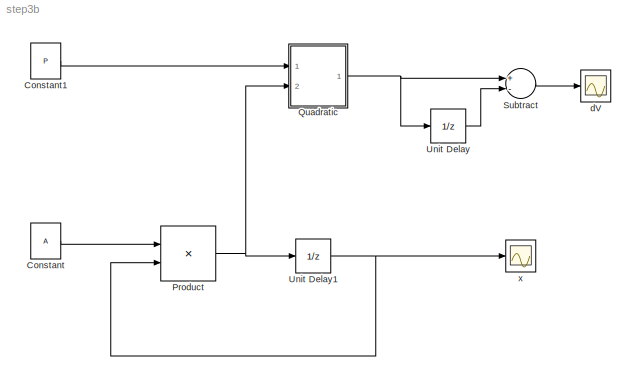
MODEL step3b
KIND model
BLOCK [Constant] Constant
  SID = 2
  Value = A
BLOCK [Constant] Constant1
  SID = 6
  Value = P
BLOCK [Product] Product
  InputSameDT = off
  Multiplication = Matrix(*)
  OutDataTypeStr = Inherit: Inherit via internal rule
  Ports = [2, 1]
  SID = 3
  SaturateOnIntegerOverflow = off
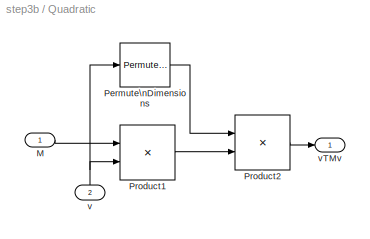
BLOCK [SubSystem] Quadratic
  FunctionWithSeparateData = off
  MaskHideContents = off
  MinAlgLoopOccurrences = off
  Opaque = off
  Ports = [2, 1]
  PropExecContextOutsideSubsystem = off
  RTWSystemCode = Auto
  RequestExecContextInheritance = off
  SID = 11
BLOCK [Inport] Quadratic/M
  IconDisplay = Port number
  SID = 12
BLOCK [PermuteDimensions] Quadratic/Permute\nDimensions
  SID = 8
BLOCK [Product] Quadratic/Product1
  InputSameDT = off
  Multiplication = Matrix(*)
  OutDataTypeStr = Inherit: Inherit via internal rule
  Ports = [2, 1]
  SID = 7
  SaturateOnIntegerOverflow = off
BLOCK [Product] Quadratic/Product2
  InputSameDT = off
  Multiplication = Matrix(*)
  OutDataTypeStr = Inherit: Inherit via internal rule
  Ports = [2, 1]
  SID = 9
  SaturateOnIntegerOverflow = off
BLOCK [Inport] Quadratic/v
  IconDisplay = Port number
  Port = 2
  SID = 14
BLOCK [Outport] Quadratic/vTMv
  IconDisplay = Port number
  SID = 13
BLOCK [Sum] Subtract
  InputSameDT = off
  Inputs = +-
  OutDataTypeStr = Inherit: Inherit via internal rule
  Ports = [2, 1]
  SID = 27
  SaturateOnIntegerOverflow = off
BLOCK [UnitDelay] Unit Delay
  InputProcessing = Elements as channels (sample based)
  SID = 41
  X0 = 5
BLOCK [UnitDelay] Unit Delay1
  InputProcessing = Elements as channels (sample based)
  SID = 42
  X0 = x0
BLOCK [Scope] dV
  DataFormat = StructureWithTime
  Floating = off
  NumInputPorts = 1
  Ports = [1]
  SID = 10
  SampleTime = 0
  SaveName = ScopeData1
  ShowLegends = off
BLOCK [Scope] x
  DataFormat = StructureWithTime
  Floating = off
  NumInputPorts = 1
  Ports = [1]
  SID = 4
  SampleTime = 0
  ShowLegends = off
LINE Constant1:1 -> Quadratic:1
LINE Constant:1 -> Product:1
NET Product:1 -> Quadratic:2, Unit Delay1:1
LINE Quadratic/M:1 -> Quadratic/Product1:1
LINE Quadratic/Permute\nDimensions:1 -> Quadratic/Product2:1
LINE Quadratic/Product1:1 -> Quadratic/Product2:2
LINE Quadratic/Product2:1 -> Quadratic/vTMv:1
NET Quadratic/v:1 -> Quadratic/Permute\nDimensions:1, Quadratic/Product1:2
NET Quadratic:1 -> Subtract:1, Unit Delay:1
LINE Subtract:1 -> dV:1
NET Unit Delay1:1 -> Product:2, x:1
LINE Unit Delay:1 -> Subtract:2
note: NET lines group one-source signal fan-out (src -> all destinations, sorted); 1:1 wires keep LINE
